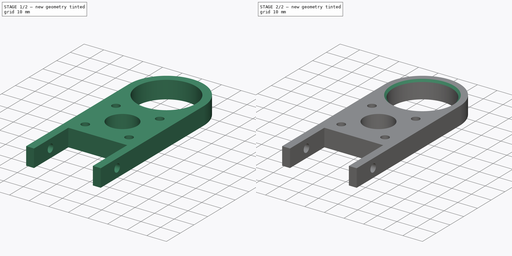
[diagram: build sequence overview — one tinted view per stage of 2, left to right]
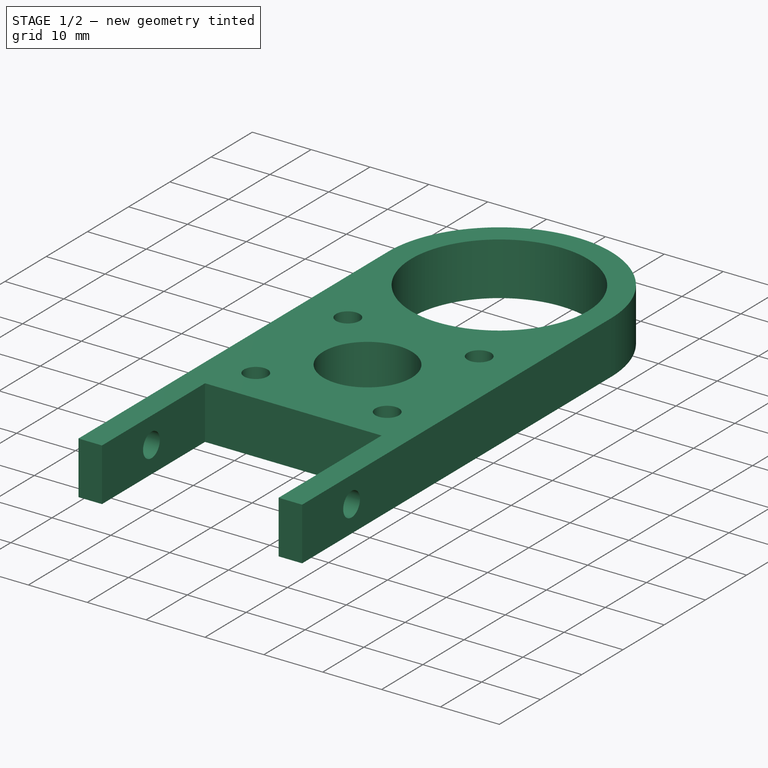
[diagram: stage 1 of 2 — iso view after this stage's code; geometry added in this stage tinted green]
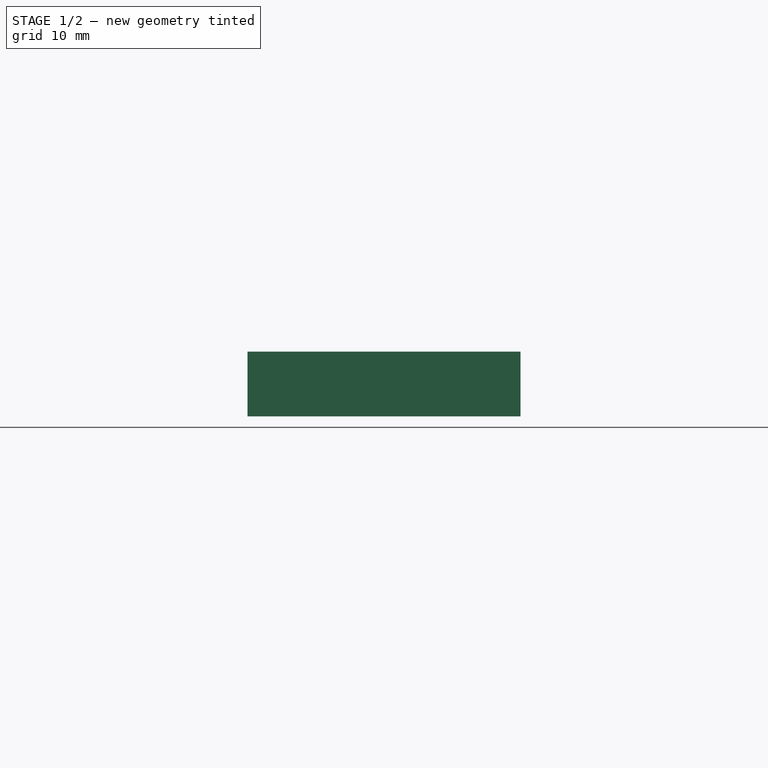
[diagram: stage 1 of 2 — front view after this stage's code; geometry added in this stage tinted green]
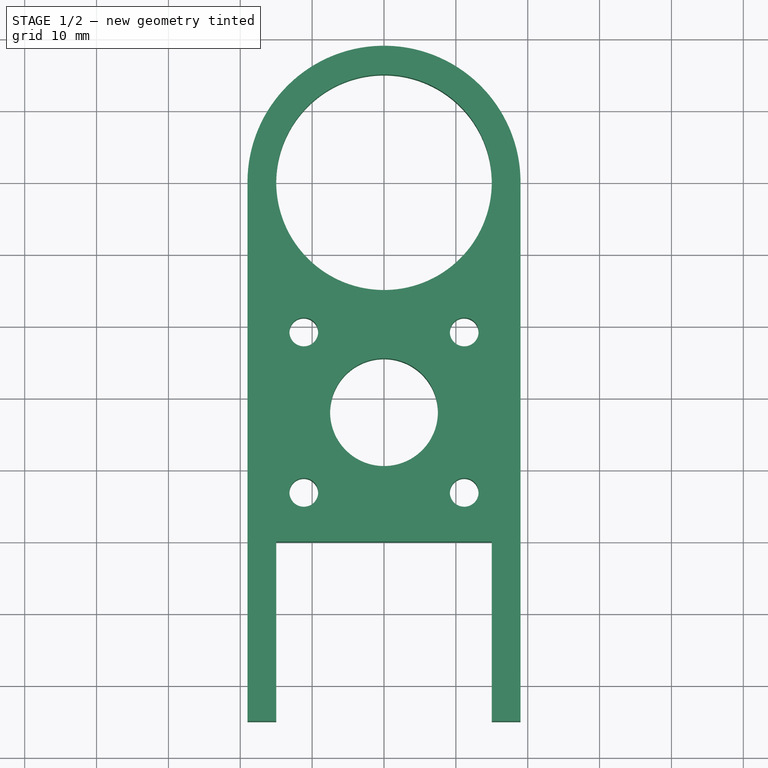
[diagram: stage 1 of 2 — top view after this stage's code; geometry added in this stage tinted green]
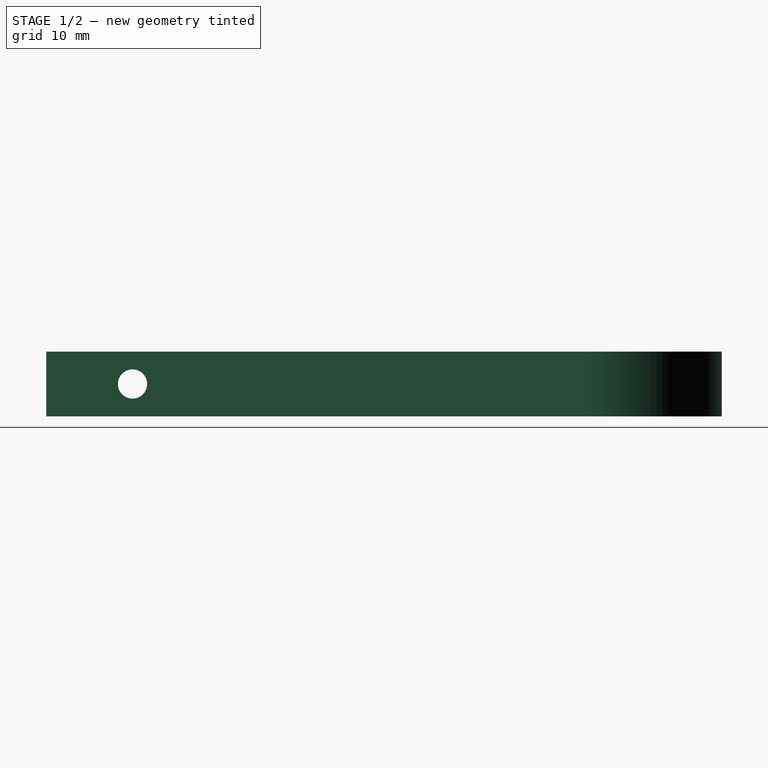
[diagram: stage 1 of 2 — right view after this stage's code; geometry added in this stage tinted green]
FCSTD DOCUMENT  (FreeCAD 0.19R24276 (Git))
Label: Bearing_holder_for_10x30x9
License: All rights reserved
LicenseURL: http://en.wikipedia.org/wiki/All_rights_reserved
objects: Sketcher::SketchObject×2, PartDesign::Pad×1, PartDesign::Pocket×1, PartDesign::Chamfer×1, PartDesign::Body×1
note: 9 computed .brp shape members not serialized (recipe doc carries the construction recipe); baked Part::Feature solids carry a one-line shape summary decoded from their .brp

FEATURE [Sketcher::SketchObject] Sketch
  FullyConstrained = false
  MapMode = 5
  Support = -> [XY_Plane]
  sketch-geometry (14):
    g0: Circle CenterX=0 CenterY=0 CenterZ=0 NormalX=0 NormalY=0 NormalZ=1 AngleXU=0 Radius=15
    g1: ArcOfCircle CenterX=0 CenterY=0 CenterZ=0 NormalX=0 NormalY=0 NormalZ=1 AngleXU=0 Radius=19 StartAngle=0.000753101 EndAngle=3.14159
    g2: LineSegment StartX=19 StartY=0.0143089 StartZ=0 EndX=19 EndY=-75 EndZ=0
    g3: LineSegment StartX=19 StartY=-75 StartZ=0 EndX=15 EndY=-75 EndZ=0
    g4: LineSegment StartX=-19 StartY=-75 StartZ=0 EndX=-19 EndY=0 EndZ=0
    g5: LineSegment StartX=-15 StartY=-75 StartZ=0 EndX=-15 EndY=-50 EndZ=0
    g6: LineSegment StartX=-15 StartY=-50 StartZ=0 EndX=15 EndY=-50 EndZ=0
    g7: LineSegment StartX=15 StartY=-50 StartZ=0 EndX=15 EndY=-75 EndZ=0
    g8: LineSegment StartX=-15 StartY=-75 StartZ=0 EndX=-19 EndY=-75 EndZ=0
    g9: Circle CenterX=0 CenterY=-32 CenterZ=0 NormalX=0 NormalY=0 NormalZ=1 AngleXU=0 Radius=7.5
    g10: Circle CenterX=-11.1627 CenterY=-20.8373 CenterZ=0 NormalX=0 NormalY=0 NormalZ=1 AngleXU=0 Radius=2
    g11: Circle CenterX=11.1627 CenterY=-20.8373 CenterZ=0 NormalX=0 NormalY=0 NormalZ=1 AngleXU=0 Radius=2
    g12: Circle CenterX=-11.1627 CenterY=-43.1627 CenterZ=0 NormalX=0 NormalY=0 NormalZ=1 AngleXU=0 Radius=2
    g13: Circle CenterX=11.1627 CenterY=-43.1627 CenterZ=0 NormalX=0 NormalY=0 NormalZ=1 AngleXU=0 Radius=2
  constraints (26):
    c: Diameter(g0) = 30
    c: Coincident(g1,g0)
    c: Diameter(g1) = 38
    c: Coincident(g2,g3)
    c: Coincident(g8,g4)
    c: Horizontal(g3)
    c: Vertical(g2)
    c: Vertical(g4)
    c: Coincident(g1,g2)
    c: Coincident(g1,g4)
    c: Vertical(g5)
    c: Horizontal(g6)
    c: DistanceY(g2,g0) = 75
    c: Coincident(g6,g5)
    c: Coincident(g6,g7)
    c: Coincident(g3,g7)
    c: Coincident(g8,g5)
    c: Tangent(g3,g8)
    c: PointOnObject(g9,g-2)
    c: DistanceY(g9,g1) = 32
    c: DistanceY(g1,g0) = 0
    c: Equal(g11,g13)
    c: Equal(g13,g12)
    c: Equal(g12,g10)
    c: Diameter(g11) = 4
    c: Diameter(g9) = 15
FEATURE [PartDesign::Pad] Pad
  Direction = (1,1,1)
  Length = 9
  Length2 = 100
  Profile = -> Sketch
  Type = 0
FEATURE [Sketcher::SketchObject] Sketch001
  FullyConstrained = false
  MapMode = 5
  Placement = pos=(19,0,0) rot=(0.57735,0.57735,0.57735;2.0944rad)
  Support = -> [Pad]
  sketch-geometry (1):
    g0: Circle CenterX=-63 CenterY=4.5 CenterZ=0 NormalX=0 NormalY=0 NormalZ=1 AngleXU=0 Radius=2.03355
  constraints (2):
    c: DistanceX(g0,g-1) = 63
    c: DistanceY(g-1,g0) = 4.5
FEATURE [PartDesign::Pocket] Pocket
  BaseFeature = -> Pad
  Length = 5
  Length2 = 100
  Profile = -> Sketch001
  Type = 1
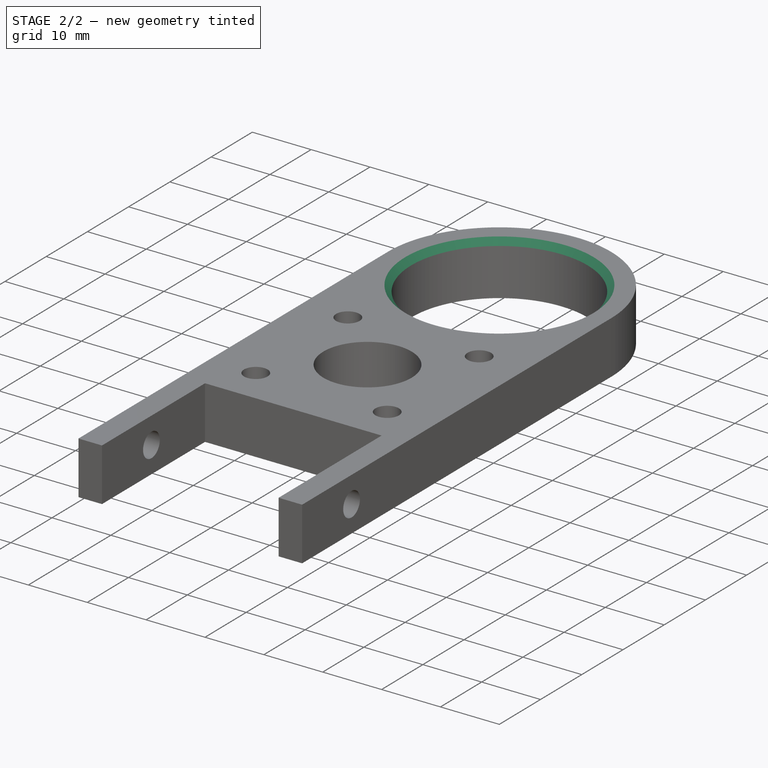
[diagram: stage 2 of 2 — iso view after this stage's code; geometry added in this stage tinted green]
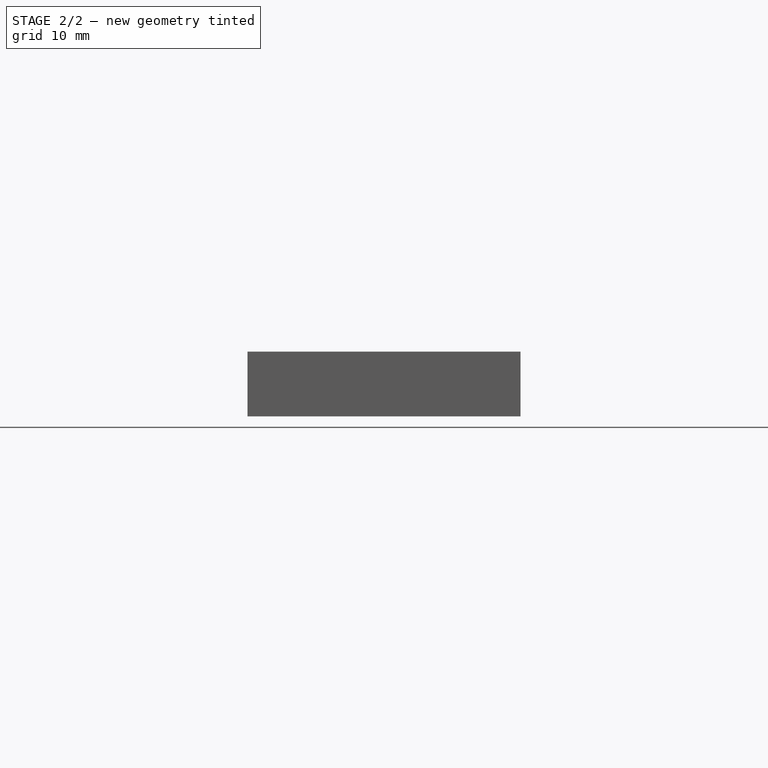
[diagram: stage 2 of 2 — front view after this stage's code; geometry added in this stage tinted green]
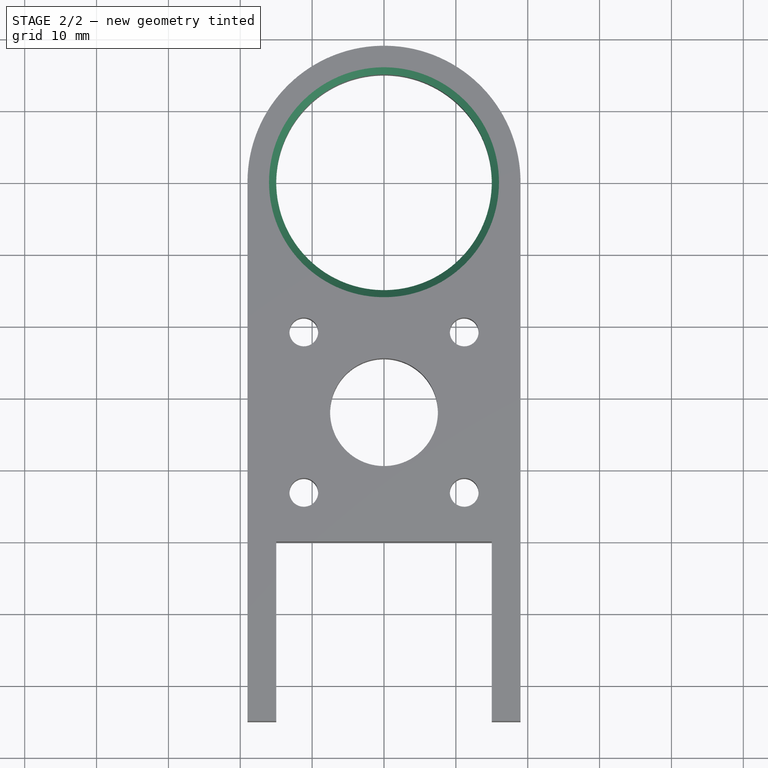
[diagram: stage 2 of 2 — top view after this stage's code; geometry added in this stage tinted green]
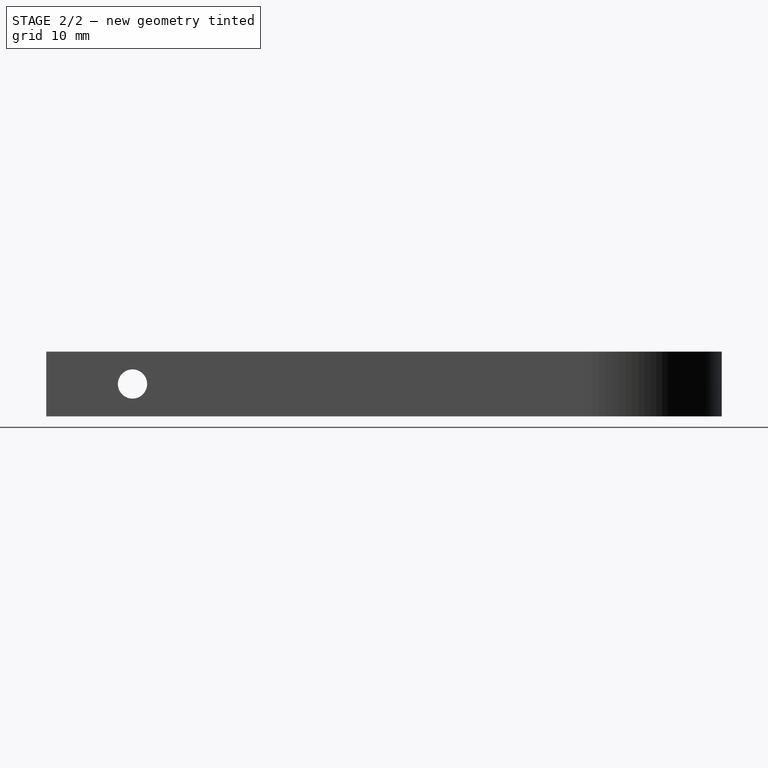
[diagram: stage 2 of 2 — right view after this stage's code; geometry added in this stage tinted green]
FEATURE [PartDesign::Chamfer] Chamfer
  Angle = 45
  Base = -> Pocket [Edge27]
  BaseFeature = -> Pocket
  ChamferType = 0
  FlipDirection = false
  Size = 1
  Size2 = 1
  SupportTransform = false
FEATURE [PartDesign::Body] Body
  Group = -> [Sketch,Pad,Sketch001,Pocket,Chamfer]
  Origin = -> Origin
  Tip = -> Chamfer
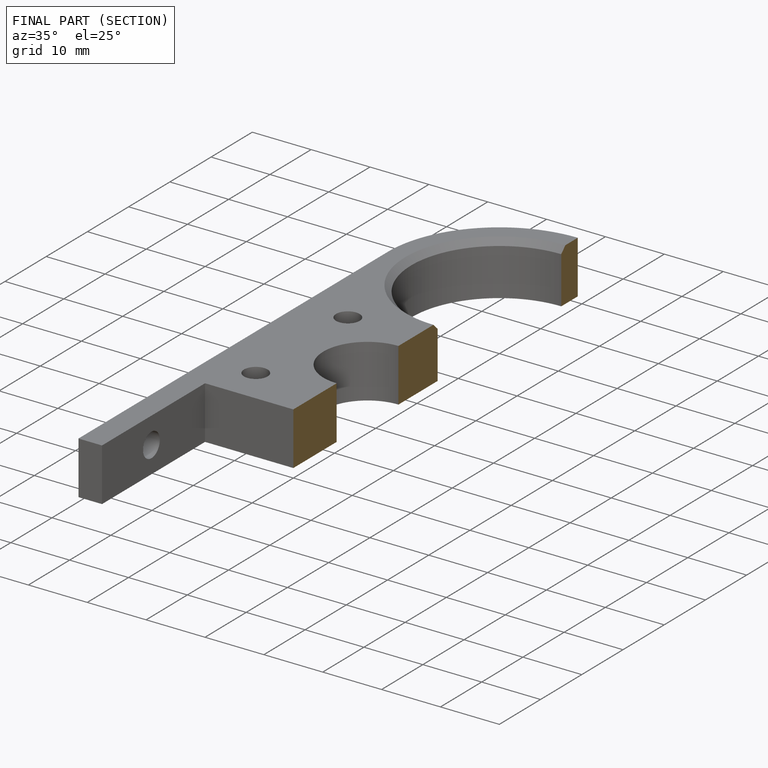
[diagram: finished part — half-section view (interior)]
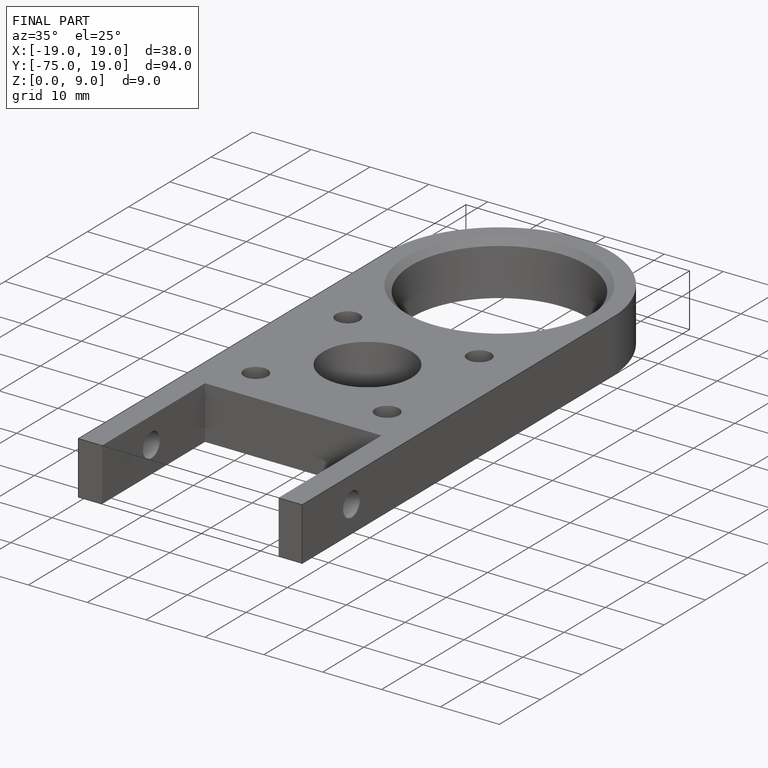
[diagram: finished part — iso view with bounding-box wireframe]
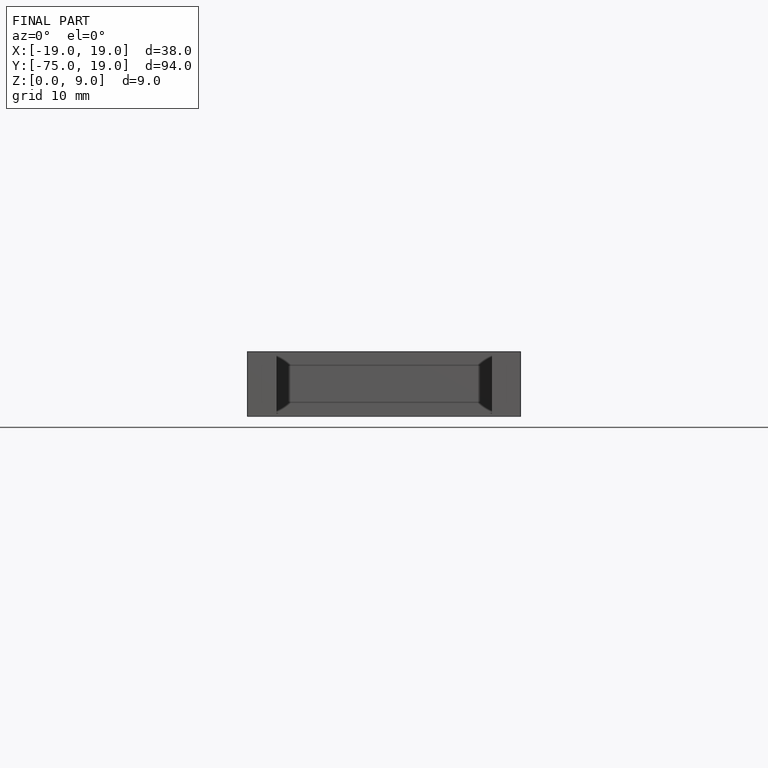
[diagram: finished part — front view with bounding-box wireframe]
